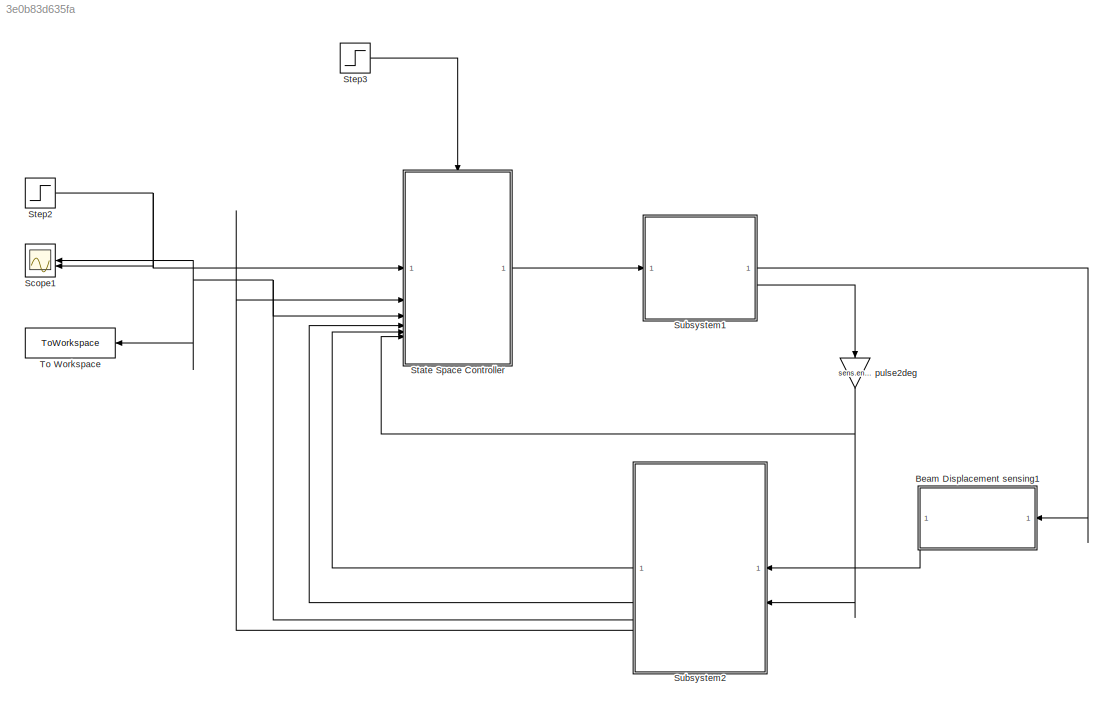
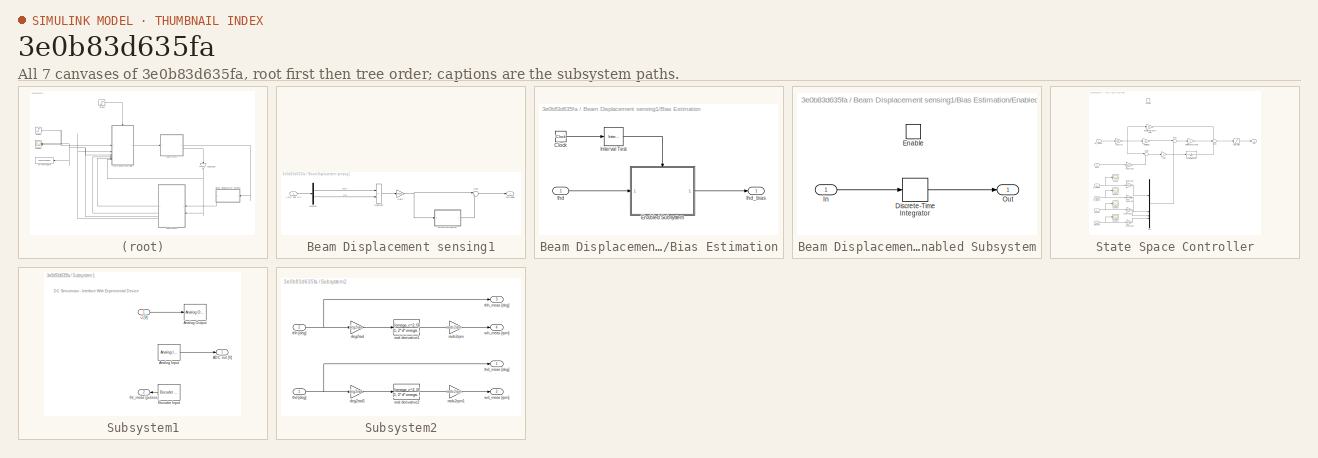
[diagram: thumbnail index - all 7 canvases of the model, root first then tree order]
MODEL slx_3e0b83d635fa
KIND model
CONFIG AbsTol = auto
CONFIG EnableMultiTasking = off
CONFIG FixedStep = 0.001
CONFIG MaxStep = auto
CONFIG MinStep = auto
CONFIG RelTol = 1e-3
CONFIG SampleTimeConstraint = Unconstrained
CONFIG SolverName = FixedStepAuto
CONFIG StartTime = 0.0
CONFIG StopTime = 10
BLOCK [SubSystem] Beam Displacement sensing1
  NameLocation = top
BLOCK [Inport] Beam Displacement sensing1/ADC out [V]
BLOCK [SubSystem] Beam Displacement sensing1/Bias Estimation
BLOCK [Clock] Beam Displacement sensing1/Bias Estimation/Clock
BLOCK [SubSystem] Beam Displacement sensing1/Bias Estimation/Enabled Subsystem
  TreatAsAtomicUnit = on
BLOCK [DiscreteIntegrator] Beam Displacement sensing1/Bias Estimation/Enabled Subsystem/Discrete-Time Integrator
  ICPrevOutput = DiscIntNeverNeededParam
  ICPrevScaledInput = DiscIntNeverNeededParam
  InitialConditionSetting = Auto
  SampleTime = -1
  gainval = 1/0.5
BLOCK [EnablePort] Beam Displacement sensing1/Bias Estimation/Enabled Subsystem/Enable
BLOCK [Inport] Beam Displacement sensing1/Bias Estimation/Enabled Subsystem/In
BLOCK [Outport] Beam Displacement sensing1/Bias Estimation/Enabled Subsystem/Out
BLOCK [Reference] Beam Displacement sensing1/Bias Estimation/Interval Test  REF=hdlsllib/Logic and Bit
Operations/Interval Test
  SourceBlock = hdlsllib/Logic and Bit\nOperations/Interval Test
  SourceType = Interval Test
BLOCK [Inport] Beam Displacement sensing1/Bias Estimation/thd
BLOCK [Outport] Beam Displacement sensing1/Bias Estimation/thd_bias
BLOCK [Demux] Beam Displacement sensing1/Demux
  Outputs = 2
BLOCK [Gain] Beam Displacement sensing1/Gain
  Gain = V2deg
BLOCK [Sum] Beam Displacement sensing1/Subtract
  IconShape = rectangular
  Inputs = +-
BLOCK [Sum] Beam Displacement sensing1/Sum
  Inputs = |+-
BLOCK [Outport] Beam Displacement sensing1/thd [deg]
BLOCK [Scope] Scope1
  Floating = off
  NameLocation = top
  NumInputPorts = 2
  ScopeSpecificationString = Simulink.scopes.TimeScopeBlockCfg('CurrentConfiguration', extmgr.ConfigurationSet(extmgr.Configuration('Core','General UI',true),extmgr.Configuration('Core','Source UI',true),extmgr.Configuration('Sources','WiredSimulink',true,'DataLoggingVariableName','ScopeData2'),extmgr.Configuration('Visuals','Time Domain',true,'SerializedDisplays',{struct('MinYLimReal','-6.615','MaxYLimReal','59.535','YLabelR...<+1471ch>
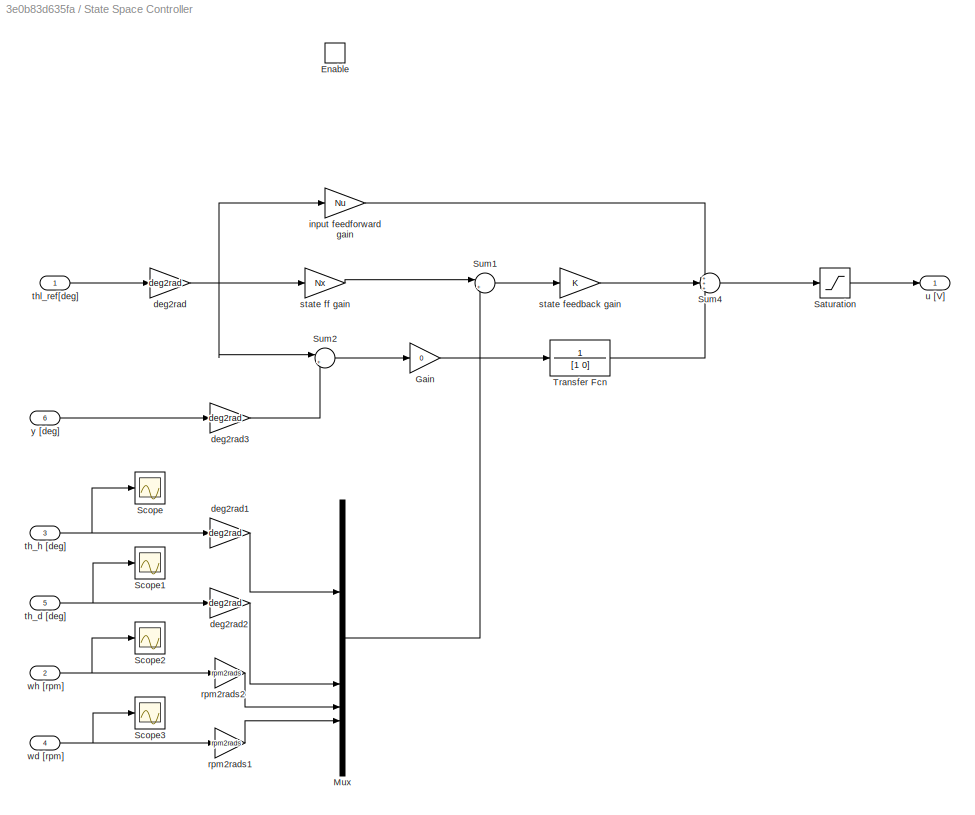
BLOCK [SubSystem] State Space Controller
BLOCK [Saturate] State Space Controller/ Saturation
  LowerLimit = -12
  UpperLimit = 12
BLOCK [EnablePort] State Space Controller/Enable
BLOCK [Gain] State Space Controller/Gain
  Gain = 0
BLOCK [Mux] State Space Controller/Mux
  DisplayOption = bar
BLOCK [Scope] State Space Controller/Scope
  Floating = off
  NumInputPorts = 1
  ScopeSpecificationString = Simulink.scopes.TimeScopeBlockCfg('CurrentConfiguration', extmgr.ConfigurationSet(extmgr.Configuration('Core','General UI',true),extmgr.Configuration('Core','Source UI',true),extmgr.Configuration('Sources','WiredSimulink',true,'DataLoggingVariableName','ScopeData1'),extmgr.Configuration('Visuals','Time Domain',true,'SerializedDisplays',{struct('MinYLimReal','-14.2875','MaxYLimReal','54.7875','YLab...<+1369ch>
BLOCK [Scope] State Space Controller/Scope1
  Floating = off
  NumInputPorts = 1
  ScopeSpecificationString = Simulink.scopes.TimeScopeBlockCfg('CurrentConfiguration', extmgr.ConfigurationSet(extmgr.Configuration('Core','General UI',true),extmgr.Configuration('Core','Source UI',true),extmgr.Configuration('Sources','WiredSimulink',true,'DataLoggingVariableName','ScopeData2'),extmgr.Configuration('Visuals','Time Domain',true,'SerializedDisplays',{struct('MinYLimReal','-8.18988','MaxYLimReal','10.2537','YLab...<+1402ch>
BLOCK [Scope] State Space Controller/Scope2
  Floating = off
  NumInputPorts = 1
  ScopeSpecificationString = Simulink.scopes.TimeScopeBlockCfg('CurrentConfiguration', extmgr.ConfigurationSet(extmgr.Configuration('Core','General UI',true),extmgr.Configuration('Core','Source UI',true),extmgr.Configuration('Sources','WiredSimulink',true,'DataLoggingVariableName','ScopeData3'),extmgr.Configuration('Visuals','Time Domain',true,'SerializedDisplays',{struct('MinYLimReal','-14.15145','MaxYLimReal','51.48698','YL...<+1373ch>
BLOCK [Scope] State Space Controller/Scope3
  Floating = off
  NumInputPorts = 1
  ScopeSpecificationString = Simulink.scopes.TimeScopeBlockCfg('CurrentConfiguration', extmgr.ConfigurationSet(extmgr.Configuration('Core','General UI',true),extmgr.Configuration('Core','Source UI',true),extmgr.Configuration('Sources','WiredSimulink',true,'DataLoggingVariableName','ScopeData4'),extmgr.Configuration('Visuals','Time Domain',true,'SerializedDisplays',{struct('MinYLimReal','-717.88162','MaxYLimReal','4674.65594',...<+1404ch>
BLOCK [Sum] State Space Controller/Sum1
  Inputs = |+-
  NameLocation = top
BLOCK [Sum] State Space Controller/Sum2
  Inputs = |+-
  NameLocation = top
BLOCK [Sum] State Space Controller/Sum4
  Inputs = +++
  NameLocation = top
BLOCK [TransferFcn] State Space Controller/Transfer Fcn
  Denominator = [1 0]
  Numerator = 1
BLOCK [Gain] State Space Controller/deg2rad
  Gain = deg2rad
BLOCK [Gain] State Space Controller/deg2rad1
  Gain = deg2rad
BLOCK [Gain] State Space Controller/deg2rad2
  Gain = deg2rad
BLOCK [Gain] State Space Controller/deg2rad3
  Gain = deg2rad
BLOCK [Gain] State Space Controller/input feedforward gain
  Gain = Nu
BLOCK [Gain] State Space Controller/rpm2rads1
  Gain = rpm2rads
BLOCK [Gain] State Space Controller/rpm2rads2
  Gain = rpm2rads
BLOCK [Gain] State Space Controller/state feedback gain
  Gain = K
  Multiplication = Matrix(K*u) (u vector)
BLOCK [Gain] State Space Controller/state ff gain
  Gain = Nx
  Multiplication = Matrix(K*u) (u vector)
BLOCK [Inport] State Space Controller/th_d [deg]
  Port = 5
BLOCK [Inport] State Space Controller/th_h [deg]
  Port = 3
BLOCK [Inport] State Space Controller/thl_ref[deg]
BLOCK [Outport] State Space Controller/u [V]
BLOCK [Inport] State Space Controller/wd [rpm]
  Port = 4
BLOCK [Inport] State Space Controller/wh [rpm]
  Port = 2
BLOCK [Inport] State Space Controller/y [deg]
  Port = 6
BLOCK [Step] Step2
  After = 50
BLOCK [Step] Step3
  After = 50
BLOCK [SubSystem] Subsystem1
BLOCK [Outport] Subsystem1/ADC out [V]
BLOCK [Reference] Subsystem1/Analog Input  REF=sldrtlib/Analog Input
  AttributesFormatString = National Instruments\nPCIe-6321 [auto]
  SourceBlock = sldrtlib/Analog Input
  SourceType = Simulink Desktop Real-Time Analog Input
BLOCK [Reference] Subsystem1/Analog Output  REF=sldrtlib/Analog Output
  AttributesFormatString = National Instruments\nPCIe-6321 [auto]
  SourceBlock = sldrtlib/Analog Output
  SourceType = Simulink Desktop Real-Time Analog Output
BLOCK [Reference] Subsystem1/Encoder Input  REF=sldrtlib/Encoder Input
  AttributesFormatString = National Instruments\nPCIe-6321 [auto]
  SourceBlock = sldrtlib/Encoder Input
  SourceType = Simulink Desktop Real-Time Encoder Input
BLOCK [Outport] Subsystem1/thl_meas [pulses]
  Port = 2
BLOCK [Inport] Subsystem1/u [V]
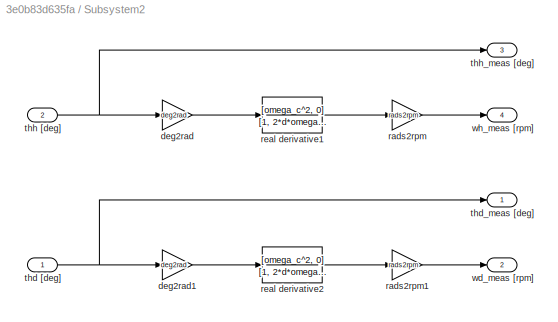
BLOCK [SubSystem] Subsystem2
  NameLocation = top
BLOCK [Gain] Subsystem2/deg2rad
  Gain = deg2rad
BLOCK [Gain] Subsystem2/deg2rad1
  Gain = deg2rad
BLOCK [Gain] Subsystem2/rads2rpm
  Gain = rads2rpm
BLOCK [Gain] Subsystem2/rads2rpm1
  Gain = rads2rpm
BLOCK [TransferFcn] Subsystem2/real derivative1
  Denominator = [1, 2*d*omega_c, omega_c^2]
  Numerator = [omega_c^2, 0]
BLOCK [TransferFcn] Subsystem2/real derivative2
  Denominator = [1, 2*d*omega_c, omega_c^2]
  Numerator = [omega_c^2, 0]
BLOCK [Inport] Subsystem2/thd [deg]
BLOCK [Outport] Subsystem2/thd_meas [deg]
BLOCK [Inport] Subsystem2/thh [deg]
  Port = 2
BLOCK [Outport] Subsystem2/thh_meas [deg]
  Port = 3
BLOCK [Outport] Subsystem2/wd_meas [rpm]
  Port = 2
BLOCK [Outport] Subsystem2/wh_meas [rpm]
  Port = 4
BLOCK [ToWorkspace] To Workspace
  Commented = on
  FixptAsFi = on
  MaxDataPoints = inf
  NameLocation = top
  SampleTime = -1
  SaveFormat = Timeseries
  VariableName = nominal_50
BLOCK [Gain] pulse2deg
  Gain = sens.enc.pulse2deg
  NameLocation = left
ANNOTATION Subsystem1: DC Servomotor - Interface With Experimental Device
LINE Beam Displacement sensing1/ADC out [V]:1 -> Beam Displacement sensing1/Demux:1
LINE Beam Displacement sensing1/Bias Estimation/Clock:1 -> Beam Displacement sensing1/Bias Estimation/Interval Test:1
LINE Beam Displacement sensing1/Bias Estimation/Enabled Subsystem/Discrete-Time Integrator:1 -> Beam Displacement sensing1/Bias Estimation/Enabled Subsystem/Out:1
LINE Beam Displacement sensing1/Bias Estimation/Enabled Subsystem/In:1 -> Beam Displacement sensing1/Bias Estimation/Enabled Subsystem/Discrete-Time Integrator:1
LINE Beam Displacement sensing1/Bias Estimation/Enabled Subsystem:1 -> Beam Displacement sensing1/Bias Estimation/thd_bias:1
LINE Beam Displacement sensing1/Bias Estimation/Interval Test:1 -> Beam Displacement sensing1/Bias Estimation/Enabled Subsystem:enable
LINE Beam Displacement sensing1/Bias Estimation/thd:1 -> Beam Displacement sensing1/Bias Estimation/Enabled Subsystem:1
LINE Beam Displacement sensing1/Bias Estimation:1 -> Beam Displacement sensing1/Sum:2
LINE Beam Displacement sensing1/Demux:1 -> Beam Displacement sensing1/Subtract:1
LINE Beam Displacement sensing1/Demux:2 -> Beam Displacement sensing1/Subtract:2
NET Beam Displacement sensing1/Gain:1 -> Beam Displacement sensing1/Bias Estimation:1, Beam Displacement sensing1/Sum:1
LINE Beam Displacement sensing1/Subtract:1 -> Beam Displacement sensing1/Gain:1
LINE Beam Displacement sensing1/Sum:1 -> Beam Displacement sensing1/thd [deg]:1
LINE Beam Displacement sensing1:1 -> Subsystem2:1
LINE State Space Controller/ Saturation:1 -> State Space Controller/u [V]:1
LINE State Space Controller/Gain:1 -> State Space Controller/Transfer Fcn:1
LINE State Space Controller/Mux:1 -> State Space Controller/Sum1:2
LINE State Space Controller/Sum1:1 -> State Space Controller/state feedback gain:1
LINE State Space Controller/Sum2:1 -> State Space Controller/Gain:1
LINE State Space Controller/Sum4:1 -> State Space Controller/ Saturation:1
LINE State Space Controller/Transfer Fcn:1 -> State Space Controller/Sum4:3
LINE State Space Controller/deg2rad1:1 -> State Space Controller/Mux:1
LINE State Space Controller/deg2rad2:1 -> State Space Controller/Mux:2
LINE State Space Controller/deg2rad3:1 -> State Space Controller/Sum2:2
NET State Space Controller/deg2rad:1 -> State Space Controller/Sum2:1, State Space Controller/input feedforward gain:1, State Space Controller/state ff gain:1
LINE State Space Controller/input feedforward gain:1 -> State Space Controller/Sum4:1
LINE State Space Controller/rpm2rads1:1 -> State Space Controller/Mux:4
LINE State Space Controller/rpm2rads2:1 -> State Space Controller/Mux:3
LINE State Space Controller/state feedback gain:1 -> State Space Controller/Sum4:2
LINE State Space Controller/state ff gain:1 -> State Space Controller/Sum1:1
NET State Space Controller/th_d [deg]:1 -> State Space Controller/Scope1:1, State Space Controller/deg2rad2:1
NET State Space Controller/th_h [deg]:1 -> State Space Controller/Scope:1, State Space Controller/deg2rad1:1
LINE State Space Controller/thl_ref[deg]:1 -> State Space Controller/deg2rad:1
NET State Space Controller/wd [rpm]:1 -> State Space Controller/Scope3:1, State Space Controller/rpm2rads1:1
NET State Space Controller/wh [rpm]:1 -> State Space Controller/Scope2:1, State Space Controller/rpm2rads2:1
LINE State Space Controller/y [deg]:1 -> State Space Controller/deg2rad3:1
LINE State Space Controller:1 -> Subsystem1:1
NET Step2:1 -> Scope1:2, State Space Controller:1
LINE Step3:1 -> State Space Controller:enable
LINE Subsystem1/Analog Input:1 -> Subsystem1/ADC out [V]:1
LINE Subsystem1/Encoder Input:1 -> Subsystem1/thl_meas [pulses]:1
LINE Subsystem1/u [V]:1 -> Subsystem1/Analog Output:1
LINE Subsystem1:1 -> Beam Displacement sensing1:1
LINE Subsystem1:2 -> pulse2deg:1
LINE Subsystem2/deg2rad1:1 -> Subsystem2/real derivative2:1
LINE Subsystem2/deg2rad:1 -> Subsystem2/real derivative1:1
LINE Subsystem2/rads2rpm1:1 -> Subsystem2/wd_meas [rpm]:1
LINE Subsystem2/rads2rpm:1 -> Subsystem2/wh_meas [rpm]:1
LINE Subsystem2/real derivative1:1 -> Subsystem2/rads2rpm:1
LINE Subsystem2/real derivative2:1 -> Subsystem2/rads2rpm1:1
NET Subsystem2/thd [deg]:1 -> Subsystem2/deg2rad1:1, Subsystem2/thd_meas [deg]:1
NET Subsystem2/thh [deg]:1 -> Subsystem2/deg2rad:1, Subsystem2/thh_meas [deg]:1
LINE Subsystem2:1 -> State Space Controller:5
LINE Subsystem2:2 -> State Space Controller:4
NET Subsystem2:3 -> Scope1:1, State Space Controller:3, To Workspace:1
LINE Subsystem2:4 -> State Space Controller:2
NET pulse2deg:1 -> State Space Controller:6, Subsystem2:2
note: NET lines group one-source signal fan-out (src -> all destinations, sorted); 1:1 wires keep LINE
